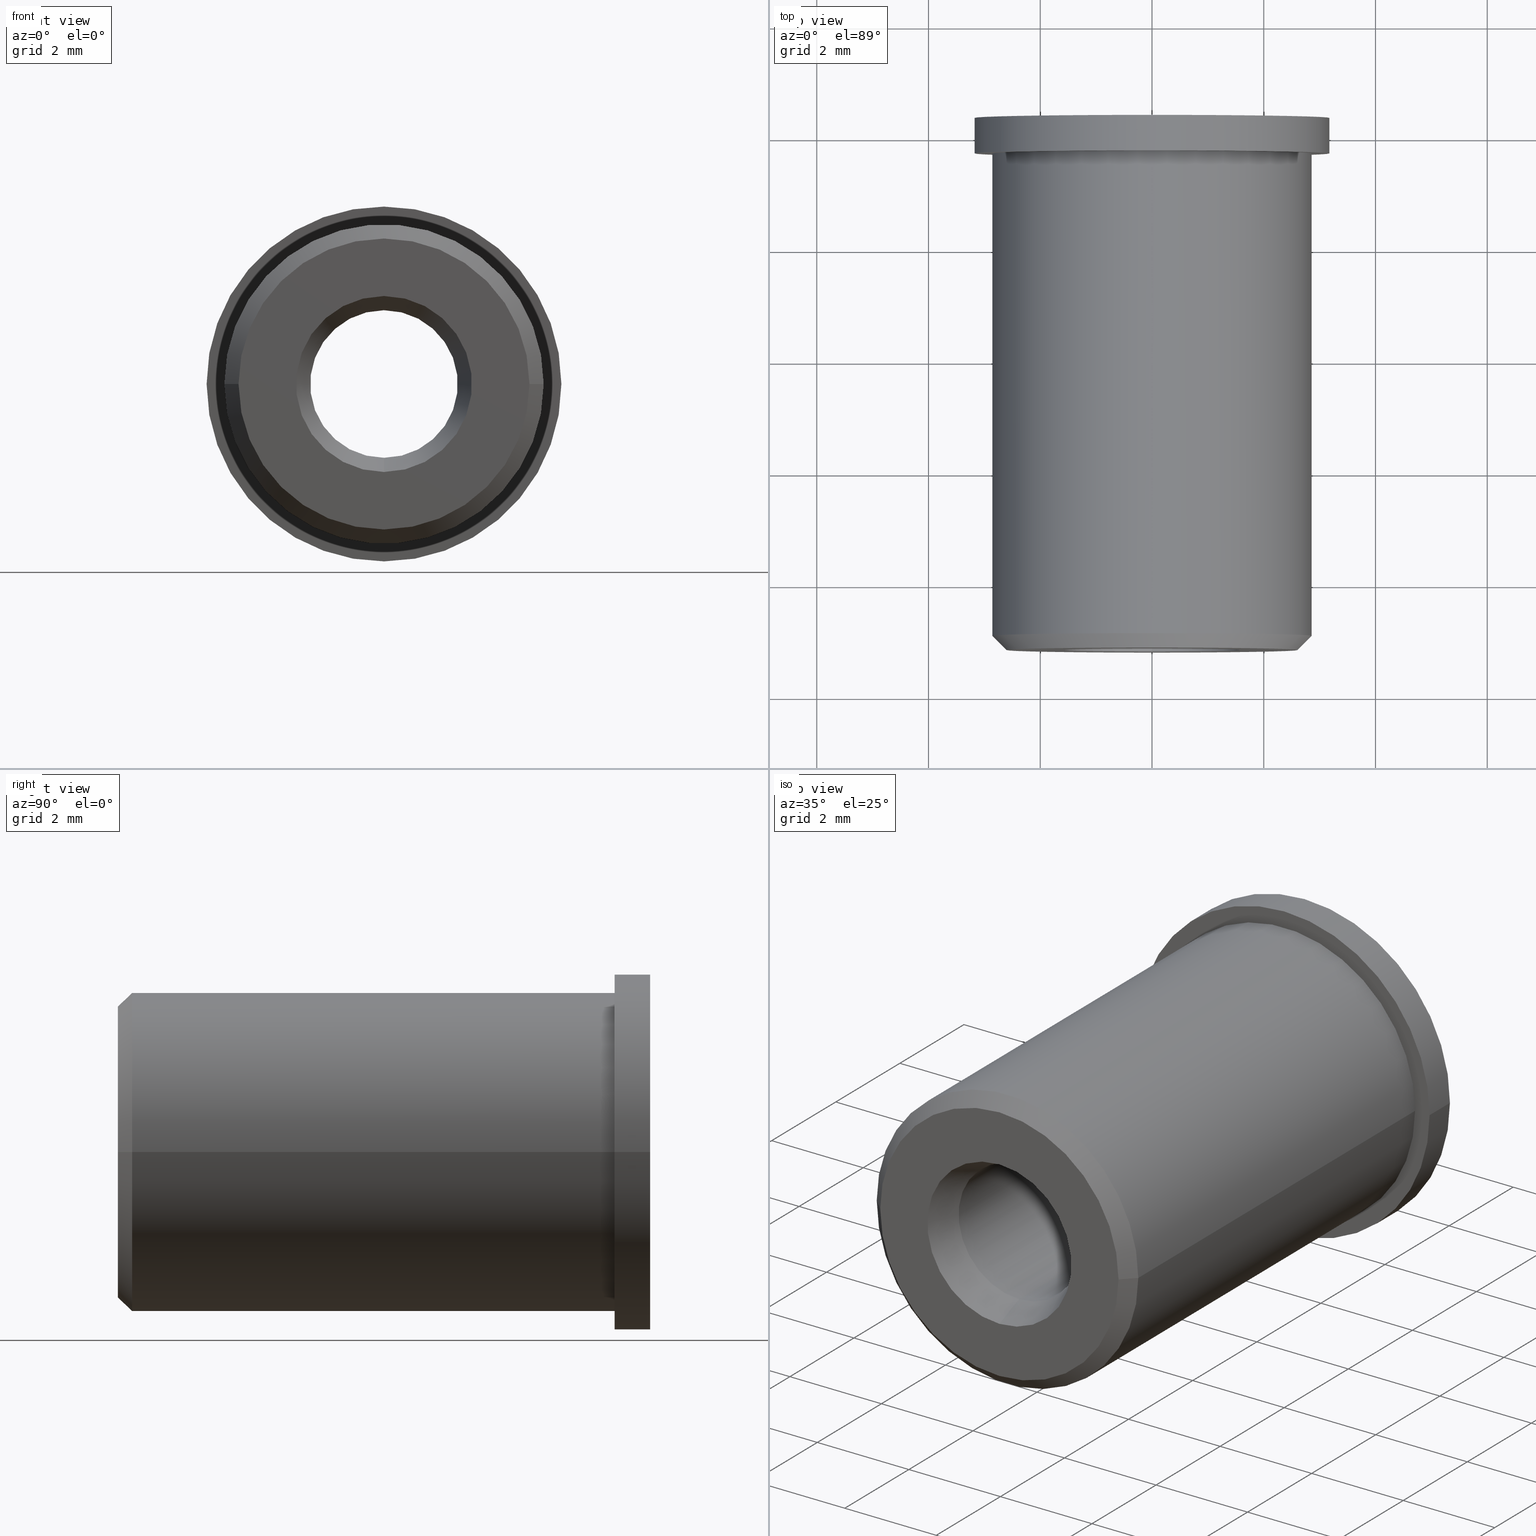
[diagram: canonical four-view strip — front | top / right | iso, engineering-drawing reading convention]
A machine part, canonical four-view strip (front | top / right | iso — engineering-drawing reading convention). The complete STEP part file that produces these views, byte-faithful:
ISO-10303-21;
HEADER;
FILE_DESCRIPTION (( 'STEP AP214' ),
    '1' );
FILE_NAME ('7627-E0W.step',
    '2007-11-09T07:52:29',
    ( ' ' ),
    ( ' ' ),
    'SwSTEP 2.0',
    'SolidWorks 2007',
    '' );
FILE_SCHEMA (( 'AUTOMOTIVE_DESIGN' ));
ENDSEC;

DATA;
#1 = UNCERTAINTY_MEASURE_WITH_UNIT (LENGTH_MEASURE( 1.000000000000000100E-005 ), #221, 'distance_accuracy_value', 'NONE');
#2 =( NAMED_UNIT ( * ) SI_UNIT ( $, .STERADIAN. ) SOLID_ANGLE_UNIT ( ) );
#3 =( GEOMETRIC_REPRESENTATION_CONTEXT ( 3 ) GLOBAL_UNCERTAINTY_ASSIGNED_CONTEXT ( ( #1 ) ) GLOBAL_UNIT_ASSIGNED_CONTEXT ( ( #221, #220, #2 ) ) REPRESENTATION_CONTEXT ( 'NONE', 'WORKASPACE' ) );
#4 = PRODUCT_RELATED_PRODUCT_CATEGORY ( 'part', '', ( #465 ) ) ;
#5 = PRODUCT_DEFINITION ( 'UNKNOWN', '', #6, #8 ) ;
#6 = PRODUCT_DEFINITION_FORMATION_WITH_SPECIFIED_SOURCE ( 'ANY', '', #465, .NOT_KNOWN. ) ;
#7 = FACE_OUTER_BOUND ( 'NONE', #45, .T. ) ;
#8 = PRODUCT_DEFINITION_CONTEXT ( 'detailed design', #464, 'design' ) ;
#9 = EDGE_LOOP ( 'NONE', ( #15, #16, #12, #10 ) ) ;
#10 = ORIENTED_EDGE ( 'NONE', *, *, #57, .F. ) ;
#11 = EDGE_CURVE ( 'NONE', #14, #58, #151, .T. ) ;
#12 = ORIENTED_EDGE ( 'NONE', *, *, #11, .T. ) ;
#13 = EDGE_CURVE ( 'NONE', #49, #14, #146, .T. ) ;
#14 = VERTEX_POINT ( 'NONE', #142 ) ;
#15 = ORIENTED_EDGE ( 'NONE', *, *, #48, .F. ) ;
#16 = ORIENTED_EDGE ( 'NONE', *, *, #13, .T. ) ;
#17 = ADVANCED_FACE ( 'NONE', ( #141 ), #171, .F. ) ;
#18 = EDGE_CURVE ( 'NONE', #49, #56, #167, .T. ) ;
#19 = SHAPE_DEFINITION_REPRESENTATION ( #20, #444 ) ;
#20 = PRODUCT_DEFINITION_SHAPE ( 'NONE', 'NONE',  #5 ) ;
#21 = ORIENTED_EDGE ( 'NONE', *, *, #57, .T. ) ;
#22 = EDGE_CURVE ( 'NONE', #93, #99, #216, .T. ) ;
#23 = ADVANCED_FACE ( 'NONE', ( #212 ), #210, .T. ) ;
#24 = EDGE_LOOP ( 'NONE', ( #25, #80, #82, #83 ) ) ;
#25 = ORIENTED_EDGE ( 'NONE', *, *, #26, .T. ) ;
#26 = EDGE_CURVE ( 'NONE', #27, #79, #205, .T. ) ;
#27 = VERTEX_POINT ( 'NONE', #201 ) ;
#28 = ADVANCED_FACE ( 'NONE', ( #200 ), #198, .F. ) ;
#29 = EDGE_LOOP ( 'NONE', ( #30, #31, #34, #37 ) ) ;
#30 = ORIENTED_EDGE ( 'NONE', *, *, #11, .F. ) ;
#31 = ORIENTED_EDGE ( 'NONE', *, *, #32, .T. ) ;
#32 = EDGE_CURVE ( 'NONE', #14, #33, #194, .T. ) ;
#33 = VERTEX_POINT ( 'NONE', #190 ) ;
#34 = ORIENTED_EDGE ( 'NONE', *, *, #35, .T. ) ;
#35 = EDGE_CURVE ( 'NONE', #33, #36, #189, .T. ) ;
#36 = VERTEX_POINT ( 'NONE', #251 ) ;
#37 = ORIENTED_EDGE ( 'NONE', *, *, #38, .F. ) ;
#38 = EDGE_CURVE ( 'NONE', #58, #36, #250, .T. ) ;
#39 = ADVANCED_FACE ( 'NONE', ( #246 ), #244, .T. ) ;
#40 = EDGE_LOOP ( 'NONE', ( #41, #94, #97, #100 ) ) ;
#41 = ORIENTED_EDGE ( 'NONE', *, *, #42, .F. ) ;
#42 = EDGE_CURVE ( 'NONE', #43, #93, #239, .T. ) ;
#43 = VERTEX_POINT ( 'NONE', #235 ) ;
#44 = MANIFOLD_SOLID_BREP ( 'NONE', #159 ) ;
#45 = EDGE_LOOP ( 'NONE', ( #47, #51, #54, #59 ) ) ;
#46 = ADVANCED_FACE ( 'NONE', ( #7 ), #283, .F. ) ;
#47 = ORIENTED_EDGE ( 'NONE', *, *, #48, .T. ) ;
#48 = EDGE_CURVE ( 'NONE', #49, #50, #278, .T. ) ;
#49 = VERTEX_POINT ( 'NONE', #274 ) ;
#50 = VERTEX_POINT ( 'NONE', #273 ) ;
#51 = ORIENTED_EDGE ( 'NONE', *, *, #52, .T. ) ;
#52 = EDGE_CURVE ( 'NONE', #50, #53, #272, .T. ) ;
#53 = VERTEX_POINT ( 'NONE', #268 ) ;
#54 = ORIENTED_EDGE ( 'NONE', *, *, #55, .F. ) ;
#55 = EDGE_CURVE ( 'NONE', #56, #53, #267, .T. ) ;
#56 = VERTEX_POINT ( 'NONE', #262 ) ;
#57 = EDGE_CURVE ( 'NONE', #50, #58, #261, .T. ) ;
#58 = VERTEX_POINT ( 'NONE', #257 ) ;
#59 = ORIENTED_EDGE ( 'NONE', *, *, #18, .F. ) ;
#60 = ORIENTED_EDGE ( 'NONE', *, *, #61, .F. ) ;
#61 = EDGE_CURVE ( 'NONE', #79, #27, #256, .T. ) ;
#62 = EDGE_LOOP ( 'NONE', ( #119, #120 ) ) ;
#63 = VERTEX_POINT ( 'NONE', #313 ) ;
#64 = ORIENTED_EDGE ( 'NONE', *, *, #65, .F. ) ;
#65 = EDGE_CURVE ( 'NONE', #66, #63, #312, .T. ) ;
#66 = VERTEX_POINT ( 'NONE', #307 ) ;
#67 = ORIENTED_EDGE ( 'NONE', *, *, #68, .F. ) ;
#68 = EDGE_CURVE ( 'NONE', #89, #66, #306, .T. ) ;
#69 = ADVANCED_FACE ( 'NONE', ( #302, #301 ), #300, .T. ) ;
#70 = EDGE_LOOP ( 'NONE', ( #71, #73 ) ) ;
#71 = ORIENTED_EDGE ( 'NONE', *, *, #72, .F. ) ;
#72 = EDGE_CURVE ( 'NONE', #36, #33, #295, .T. ) ;
#73 = ORIENTED_EDGE ( 'NONE', *, *, #35, .F. ) ;
#74 = EDGE_LOOP ( 'NONE', ( #75, #76 ) ) ;
#75 = ORIENTED_EDGE ( 'NONE', *, *, #88, .F. ) ;
#76 = ORIENTED_EDGE ( 'NONE', *, *, #77, .F. ) ;
#77 = EDGE_CURVE ( 'NONE', #90, #89, #290, .T. ) ;
#78 = EDGE_LOOP ( 'NONE', ( #131, #132, #133, #134 ) ) ;
#79 = VERTEX_POINT ( 'NONE', #285 ) ;
#80 = ORIENTED_EDGE ( 'NONE', *, *, #81, .T. ) ;
#81 = EDGE_CURVE ( 'NONE', #79, #99, #349, .T. ) ;
#82 = ORIENTED_EDGE ( 'NONE', *, *, #98, .F. ) ;
#83 = ORIENTED_EDGE ( 'NONE', *, *, #84, .F. ) ;
#84 = EDGE_CURVE ( 'NONE', #27, #96, #345, .T. ) ;
#85 = ADVANCED_FACE ( 'NONE', ( #341 ), #339, .T. ) ;
#86 = EDGE_LOOP ( 'NONE', ( #87, #91, #64, #67 ) ) ;
#87 = ORIENTED_EDGE ( 'NONE', *, *, #88, .T. ) ;
#88 = EDGE_CURVE ( 'NONE', #89, #90, #334, .T. ) ;
#89 = VERTEX_POINT ( 'NONE', #330 ) ;
#90 = VERTEX_POINT ( 'NONE', #329 ) ;
#91 = ORIENTED_EDGE ( 'NONE', *, *, #92, .T. ) ;
#92 = EDGE_CURVE ( 'NONE', #90, #63, #328, .T. ) ;
#93 = VERTEX_POINT ( 'NONE', #324 ) ;
#94 = ORIENTED_EDGE ( 'NONE', *, *, #95, .T. ) ;
#95 = EDGE_CURVE ( 'NONE', #43, #96, #323, .T. ) ;
#96 = VERTEX_POINT ( 'NONE', #319 ) ;
#97 = ORIENTED_EDGE ( 'NONE', *, *, #98, .T. ) ;
#98 = EDGE_CURVE ( 'NONE', #96, #99, #318, .T. ) ;
#99 = VERTEX_POINT ( 'NONE', #373 ) ;
#100 = ORIENTED_EDGE ( 'NONE', *, *, #22, .F. ) ;
#101 = ADVANCED_FACE ( 'NONE', ( #372 ), #351, .F. ) ;
#102 = EDGE_LOOP ( 'NONE', ( #103, #104, #21, #152 ) ) ;
#103 = ORIENTED_EDGE ( 'NONE', *, *, #13, .F. ) ;
#104 = ORIENTED_EDGE ( 'NONE', *, *, #105, .F. ) ;
#105 = EDGE_CURVE ( 'NONE', #50, #49, #407, .T. ) ;
#106 = ORIENTED_EDGE ( 'NONE', *, *, #95, .F. ) ;
#107 = ORIENTED_EDGE ( 'NONE', *, *, #108, .F. ) ;
#108 = EDGE_CURVE ( 'NONE', #93, #43, #403, .T. ) ;
#109 = ORIENTED_EDGE ( 'NONE', *, *, #22, .T. ) ;
#110 = ORIENTED_EDGE ( 'NONE', *, *, #127, .T. ) ;
#111 = ADVANCED_FACE ( 'NONE', ( #398, #397 ), #396, .F. ) ;
#112 = EDGE_LOOP ( 'NONE', ( #113, #114 ) ) ;
#113 = ORIENTED_EDGE ( 'NONE', *, *, #55, .T. ) ;
#114 = ORIENTED_EDGE ( 'NONE', *, *, #115, .T. ) ;
#115 = EDGE_CURVE ( 'NONE', #53, #56, #391, .T. ) ;
#116 = EDGE_LOOP ( 'NONE', ( #117, #118 ) ) ;
#117 = ORIENTED_EDGE ( 'NONE', *, *, #108, .T. ) ;
#118 = ORIENTED_EDGE ( 'NONE', *, *, #42, .T. ) ;
#119 = ORIENTED_EDGE ( 'NONE', *, *, #65, .T. ) ;
#120 = ORIENTED_EDGE ( 'NONE', *, *, #135, .T. ) ;
#121 = ADVANCED_FACE ( 'NONE', ( #386 ), #385, .T. ) ;
#122 = EDGE_LOOP ( 'NONE', ( #123, #124, #125, #126 ) ) ;
#123 = ORIENTED_EDGE ( 'NONE', *, *, #81, .F. ) ;
#124 = ORIENTED_EDGE ( 'NONE', *, *, #61, .T. ) ;
#125 = ORIENTED_EDGE ( 'NONE', *, *, #84, .T. ) ;
#126 = ORIENTED_EDGE ( 'NONE', *, *, #127, .F. ) ;
#127 = EDGE_CURVE ( 'NONE', #99, #96, #379, .T. ) ;
#128 = ADVANCED_FACE ( 'NONE', ( #441 ), #440, .T. ) ;
#129 = EDGE_LOOP ( 'NONE', ( #106, #107, #109, #110 ) ) ;
#130 = ADVANCED_FACE ( 'NONE', ( #439 ), #434, .T. ) ;
#131 = ORIENTED_EDGE ( 'NONE', *, *, #92, .F. ) ;
#132 = ORIENTED_EDGE ( 'NONE', *, *, #77, .T. ) ;
#133 = ORIENTED_EDGE ( 'NONE', *, *, #68, .T. ) ;
#134 = ORIENTED_EDGE ( 'NONE', *, *, #135, .F. ) ;
#135 = EDGE_CURVE ( 'NONE', #63, #66, #428, .T. ) ;
#136 = ADVANCED_FACE ( 'NONE', ( #424, #423 ), #422, .F. ) ;
#137 = EDGE_LOOP ( 'NONE', ( #138, #60 ) ) ;
#138 = ORIENTED_EDGE ( 'NONE', *, *, #26, .F. ) ;
#139 = FILL_AREA_STYLE_COLOUR ( '', #140 ) ;
#140 = COLOUR_RGB ( '',1.000000000000000000, 0.7254901960784313500, 0.0000000000000000000 ) ;
#141 = FACE_OUTER_BOUND ( 'NONE', #9, .T. ) ;
#142 = CARTESIAN_POINT ( 'NONE',  ( -8.637962917637001400E-016, 0.2258578643762695300, -0.05199999999999999100 ) ) ;
#143 = DIRECTION ( 'NONE',  ( 0.0000000000000000000, 1.000000000000000000, 0.0000000000000000000 ) ) ;
#144 = VECTOR ( 'NONE', #143, 39.37007874015748100 ) ;
#145 = CARTESIAN_POINT ( 'NONE',  ( -8.644085949406113300E-016, 0.2500000000000006100, -0.05199999999999995600 ) ) ;
#146 = LINE ( 'NONE', #145, #144 ) ;
#147 = DIRECTION ( 'NONE',  ( 0.0000000000000000000, 0.0000000000000000000, 1.000000000000000000 ) ) ;
#148 = DIRECTION ( 'NONE',  ( 0.0000000000000000000, 1.000000000000000000, 0.0000000000000000000 ) ) ;
#149 = CARTESIAN_POINT ( 'NONE',  ( -8.707765479804877300E-016, 0.2258578643762695300, 0.0000000000000000000 ) ) ;
#150 = AXIS2_PLACEMENT_3D ( 'NONE', #149, #148, #147 ) ;
#151 = CIRCLE ( 'NONE', #150, 0.05199999999999999100 ) ;
#152 = ORIENTED_EDGE ( 'NONE', *, *, #164, .T. ) ;
#153 = ADVANCED_FACE ( 'NONE', ( #417 ), #416, .F. ) ;
#154 = EDGE_LOOP ( 'NONE', ( #155, #156, #157, #158 ) ) ;
#155 = ORIENTED_EDGE ( 'NONE', *, *, #52, .F. ) ;
#156 = ORIENTED_EDGE ( 'NONE', *, *, #105, .T. ) ;
#157 = ORIENTED_EDGE ( 'NONE', *, *, #18, .T. ) ;
#158 = ORIENTED_EDGE ( 'NONE', *, *, #115, .F. ) ;
#159 = CLOSED_SHELL ( 'NONE', ( #46, #17, #28, #39, #23, #85, #69, #130, #136, #121, #128, #111, #160, #101, #153 ) ) ;
#160 = ADVANCED_FACE ( 'NONE', ( #415 ), #410, .F. ) ;
#161 = EDGE_LOOP ( 'NONE', ( #162, #163, #165, #166 ) ) ;
#162 = ORIENTED_EDGE ( 'NONE', *, *, #32, .F. ) ;
#163 = ORIENTED_EDGE ( 'NONE', *, *, #164, .F. ) ;
#164 = EDGE_CURVE ( 'NONE', #58, #14, #458, .T. ) ;
#165 = ORIENTED_EDGE ( 'NONE', *, *, #38, .T. ) ;
#166 = ORIENTED_EDGE ( 'NONE', *, *, #72, .T. ) ;
#167 = LINE ( 'NONE', #219, #218 ) ;
#168 = DIRECTION ( 'NONE',  ( 0.0000000000000000000, 0.0000000000000000000, 1.000000000000000000 ) ) ;
#169 = DIRECTION ( 'NONE',  ( 0.0000000000000000000, 1.000000000000000000, 0.0000000000000000000 ) ) ;
#170 = AXIS2_PLACEMENT_3D ( 'NONE', #172, #169, #168 ) ;
#171 = CYLINDRICAL_SURFACE ( 'NONE', #170, 0.05199999999999995600 ) ;
#172 = CARTESIAN_POINT ( 'NONE',  ( -8.707765479804877300E-016, 0.2500000000000006100, 0.0000000000000000000 ) ) ;
#173 =( GEOMETRIC_REPRESENTATION_CONTEXT ( 3 ) GLOBAL_UNCERTAINTY_ASSIGNED_CONTEXT ( ( #174 ) ) GLOBAL_UNIT_ASSIGNED_CONTEXT ( ( #177, #176, #175 ) ) REPRESENTATION_CONTEXT ( 'NONE', 'WORKASPACE' ) );
#174 = UNCERTAINTY_MEASURE_WITH_UNIT (LENGTH_MEASURE( 1.000000000000000100E-005 ), #177, 'distance_accuracy_value', 'NONE');
#175 =( NAMED_UNIT ( * ) SI_UNIT ( $, .STERADIAN. ) SOLID_ANGLE_UNIT ( ) );
#176 =( NAMED_UNIT ( * ) PLANE_ANGLE_UNIT ( ) SI_UNIT ( $, .RADIAN. ) );
#177 =( CONVERSION_BASED_UNIT ( 'INCH', #178 ) LENGTH_UNIT ( ) NAMED_UNIT ( #179 ) );
#178 = LENGTH_MEASURE_WITH_UNIT ( LENGTH_MEASURE( 0.02539999999999999900 ), #180 );
#179 = DIMENSIONAL_EXPONENTS ( 1.000000000000000000, 0.0000000000000000000, 0.0000000000000000000, 0.0000000000000000000, 0.0000000000000000000, 0.0000000000000000000, 0.0000000000000000000 ) ;
#180 =( LENGTH_UNIT ( ) NAMED_UNIT ( * ) SI_UNIT ( $, .METRE. ) );
#181 = MECHANICAL_DESIGN_GEOMETRIC_PRESENTATION_REPRESENTATION (  '', ( #183 ), #173 ) ;
#182 = PRESENTATION_LAYER_ASSIGNMENT (  '', '', ( #183 ) ) ;
#183 = STYLED_ITEM ( 'NONE', ( #184 ), #17 ) ;
#184 = PRESENTATION_STYLE_ASSIGNMENT (( #185 ) ) ;
#185 = SURFACE_STYLE_USAGE ( .BOTH. , #186 ) ;
#186 = SURFACE_SIDE_STYLE ('',( #187 ) ) ;
#187 = SURFACE_STYLE_FILL_AREA ( #188 ) ;
#188 = FILL_AREA_STYLE ('',( #139 ) ) ;
#189 = CIRCLE ( 'NONE', #255, 0.06199999999999997900 ) ;
#190 = CARTESIAN_POINT ( 'NONE',  ( -8.631839885867890400E-016, 0.2500000000000006700, -0.06199999999999997900 ) ) ;
#191 = DIRECTION ( 'NONE',  ( 4.686365627768408700E-017, 0.9238795325112879600, -0.3826834323650865100 ) ) ;
#192 = VECTOR ( 'NONE', #191, 39.37007874015748900 ) ;
#193 = CARTESIAN_POINT ( 'NONE',  ( -8.631839885867890400E-016, 0.2500000000000006700, -0.06199999999999997900 ) ) ;
#194 = LINE ( 'NONE', #193, #192 ) ;
#195 = DIRECTION ( 'NONE',  ( 0.0000000000000000000, 0.0000000000000000000, 1.000000000000000000 ) ) ;
#196 = DIRECTION ( 'NONE',  ( 0.0000000000000000000, 1.000000000000000000, 0.0000000000000000000 ) ) ;
#197 = AXIS2_PLACEMENT_3D ( 'NONE', #199, #196, #195 ) ;
#198 = CONICAL_SURFACE ( 'NONE', #197, 0.06199999999999997900, 0.3926990816987207000 ) ;
#199 = CARTESIAN_POINT ( 'NONE',  ( -8.707765479804877300E-016, 0.2500000000000006700, 0.0000000000000000000 ) ) ;
#200 = FACE_OUTER_BOUND ( 'NONE', #29, .T. ) ;
#201 = CARTESIAN_POINT ( 'NONE',  ( 0.1125000000000023200, 0.2250000000000025900, 0.0000000000000000000 ) ) ;
#202 = DIRECTION ( 'NONE',  ( 1.000000000000000000, 3.338925325589625100E-015, 0.0000000000000000000 ) ) ;
#203 = DIRECTION ( 'NONE',  ( 3.483106191921942700E-015, -1.000000000000000000, 0.0000000000000000000 ) ) ;
#204 = AXIS2_PLACEMENT_3D ( 'NONE', #211, #203, #202 ) ;
#205 = CIRCLE ( 'NONE', #204, 0.1125000000000010000 ) ;
#206 = DIRECTION ( 'NONE',  ( 1.000000000000000000, 3.483106191921943400E-015, 0.0000000000000000000 ) ) ;
#207 = DIRECTION ( 'NONE',  ( 3.483106191921942700E-015, -1.000000000000000000, 0.0000000000000000000 ) ) ;
#208 = CARTESIAN_POINT ( 'NONE',  ( 2.100108145129402400E-015, 1.092680835779487700E-015, 0.0000000000000000000 ) ) ;
#209 = AXIS2_PLACEMENT_3D ( 'NONE', #208, #207, #206 ) ;
#210 = CYLINDRICAL_SURFACE ( 'NONE', #209, 0.1125000000000019500 ) ;
#211 = CARTESIAN_POINT ( 'NONE',  ( 1.316409251946961300E-015, 0.2250000000000022000, 0.0000000000000000000 ) ) ;
#212 = FACE_OUTER_BOUND ( 'NONE', #24, .T. ) ;
#213 = DIRECTION ( 'NONE',  ( -0.7071067811865077200, 0.7071067811865873200, 0.0000000000000000000 ) ) ;
#214 = VECTOR ( 'NONE', #213, 39.37007874015748100 ) ;
#215 = CARTESIAN_POINT ( 'NONE',  ( -0.1125000000000003800, -0.1149999999999989100, 0.0000000000000000000 ) ) ;
#216 = LINE ( 'NONE', #215, #214 ) ;
#217 = DIRECTION ( 'NONE',  ( 0.0000000000000000000, -0.9238795325112865200, -0.3826834323650904500 ) ) ;
#218 = VECTOR ( 'NONE', #217, 39.37007874015748100 ) ;
#219 = CARTESIAN_POINT ( 'NONE',  ( -8.707765479804877300E-016, -0.1008578643762686300, -0.05199999999999992800 ) ) ;
#220 =( NAMED_UNIT ( * ) PLANE_ANGLE_UNIT ( ) SI_UNIT ( $, .RADIAN. ) );
#221 =( CONVERSION_BASED_UNIT ( 'INCH', #222 ) LENGTH_UNIT ( ) NAMED_UNIT ( #223 ) );
#222 = LENGTH_MEASURE_WITH_UNIT ( LENGTH_MEASURE( 0.02539999999999999900 ), #224 );
#223 = DIMENSIONAL_EXPONENTS ( 1.000000000000000000, 0.0000000000000000000, 0.0000000000000000000, 0.0000000000000000000, 0.0000000000000000000, 0.0000000000000000000, 0.0000000000000000000 ) ;
#224 =( LENGTH_UNIT ( ) NAMED_UNIT ( * ) SI_UNIT ( $, .METRE. ) );
#225 = MECHANICAL_DESIGN_GEOMETRIC_PRESENTATION_REPRESENTATION (  '', ( #227 ), #3 ) ;
#226 = PRESENTATION_LAYER_ASSIGNMENT (  '', '', ( #227 ) ) ;
#227 = STYLED_ITEM ( 'NONE', ( #228 ), #44 ) ;
#228 = PRESENTATION_STYLE_ASSIGNMENT (( #229 ) ) ;
#229 = SURFACE_STYLE_USAGE ( .BOTH. , #230 ) ;
#230 = SURFACE_SIDE_STYLE ('',( #231 ) ) ;
#231 = SURFACE_STYLE_FILL_AREA ( #232 ) ;
#232 = FILL_AREA_STYLE ('',( #233 ) ) ;
#233 = FILL_AREA_STYLE_COLOUR ( '', #234 ) ;
#234 = COLOUR_RGB ( '',1.000000000000000000, 0.7254901960784313500, 0.0000000000000000000 ) ;
#235 = CARTESIAN_POINT ( 'NONE',  ( 0.1025000000000064200, -0.1249999999999983600, 1.316451830359096900E-017 ) ) ;
#236 = DIRECTION ( 'NONE',  ( 1.000000000000000000, 3.498098040667521200E-015, 0.0000000000000000000 ) ) ;
#237 = DIRECTION ( 'NONE',  ( 3.483106191921942700E-015, -1.000000000000000000, 0.0000000000000000000 ) ) ;
#238 = AXIS2_PLACEMENT_3D ( 'NONE', #245, #237, #236 ) ;
#239 = CIRCLE ( 'NONE', #238, 0.1025000000000038900 ) ;
#240 = DIRECTION ( 'NONE',  ( -1.000000000000000000, -3.490694658570914100E-015, 0.0000000000000000000 ) ) ;
#241 = DIRECTION ( 'NONE',  ( -3.483106191921942700E-015, 1.000000000000000000, 0.0000000000000000000 ) ) ;
#242 = CARTESIAN_POINT ( 'NONE',  ( 2.500665357200424700E-015, -0.1149999999999985200, 0.0000000000000000000 ) ) ;
#243 = AXIS2_PLACEMENT_3D ( 'NONE', #242, #241, #240 ) ;
#244 = CONICAL_SURFACE ( 'NONE', #243, 0.1125000000000028600, 0.7853981633973885500 ) ;
#245 = CARTESIAN_POINT ( 'NONE',  ( 2.535496419119644400E-015, -0.1249999999999987200, 0.0000000000000000000 ) ) ;
#246 = FACE_OUTER_BOUND ( 'NONE', #40, .T. ) ;
#247 = DIRECTION ( 'NONE',  ( 0.0000000000000000000, 0.9238795325112879600, 0.3826834323650865100 ) ) ;
#248 = VECTOR ( 'NONE', #247, 39.37007874015748900 ) ;
#249 = CARTESIAN_POINT ( 'NONE',  ( -8.707765479804877300E-016, 0.2500000000000006700, 0.06199999999999997900 ) ) ;
#250 = LINE ( 'NONE', #249, #248 ) ;
#251 = CARTESIAN_POINT ( 'NONE',  ( -8.707765479804877300E-016, 0.2500000000000006700, 0.06199999999999997900 ) ) ;
#252 = DIRECTION ( 'NONE',  ( 0.0000000000000000000, 0.0000000000000000000, 1.000000000000000000 ) ) ;
#253 = DIRECTION ( 'NONE',  ( 0.0000000000000000000, 1.000000000000000000, 0.0000000000000000000 ) ) ;
#254 = CARTESIAN_POINT ( 'NONE',  ( -8.707765479804877300E-016, 0.2500000000000006700, 0.0000000000000000000 ) ) ;
#255 = AXIS2_PLACEMENT_3D ( 'NONE', #254, #253, #252 ) ;
#256 = CIRCLE ( 'NONE', #317, 0.1125000000000010000 ) ;
#257 = CARTESIAN_POINT ( 'NONE',  ( -8.707765479804877300E-016, 0.2258578643762695300, 0.05199999999999999100 ) ) ;
#258 = DIRECTION ( 'NONE',  ( 0.0000000000000000000, 1.000000000000000000, 0.0000000000000000000 ) ) ;
#259 = VECTOR ( 'NONE', #258, 39.37007874015748100 ) ;
#260 = CARTESIAN_POINT ( 'NONE',  ( -8.707765479804877300E-016, 0.2500000000000006100, 0.05199999999999995600 ) ) ;
#261 = LINE ( 'NONE', #260, #259 ) ;
#262 = CARTESIAN_POINT ( 'NONE',  ( -8.707765479804877300E-016, -0.1249999999999994900, -0.06199999999999990200 ) ) ;
#263 = DIRECTION ( 'NONE',  ( 0.0000000000000000000, 0.0000000000000000000, 1.000000000000000000 ) ) ;
#264 = DIRECTION ( 'NONE',  ( 0.0000000000000000000, 1.000000000000000000, 0.0000000000000000000 ) ) ;
#265 = CARTESIAN_POINT ( 'NONE',  ( -8.707765479804877300E-016, -0.1249999999999994900, 0.0000000000000000000 ) ) ;
#266 = AXIS2_PLACEMENT_3D ( 'NONE', #265, #264, #263 ) ;
#267 = CIRCLE ( 'NONE', #266, 0.06199999999999990200 ) ;
#268 = CARTESIAN_POINT ( 'NONE',  ( -8.631839885867890400E-016, -0.1249999999999994900, 0.06199999999999990200 ) ) ;
#269 = DIRECTION ( 'NONE',  ( 4.686365627768457400E-017, -0.9238795325112865200, 0.3826834323650904500 ) ) ;
#270 = VECTOR ( 'NONE', #269, 39.37007874015748100 ) ;
#271 = CARTESIAN_POINT ( 'NONE',  ( -8.644085949406113300E-016, -0.1008578643762686300, 0.05199999999999992800 ) ) ;
#272 = LINE ( 'NONE', #271, #270 ) ;
#273 = CARTESIAN_POINT ( 'NONE',  ( -8.707765479804877300E-016, -0.1008578643762686300, 0.05199999999999992800 ) ) ;
#274 = CARTESIAN_POINT ( 'NONE',  ( -8.644085949406113300E-016, -0.1008578643762686300, -0.05199999999999992800 ) ) ;
#275 = DIRECTION ( 'NONE',  ( 0.0000000000000000000, 0.0000000000000000000, 1.000000000000000000 ) ) ;
#276 = DIRECTION ( 'NONE',  ( 0.0000000000000000000, 1.000000000000000000, 0.0000000000000000000 ) ) ;
#277 = AXIS2_PLACEMENT_3D ( 'NONE', #284, #276, #275 ) ;
#278 = CIRCLE ( 'NONE', #277, 0.05199999999999992800 ) ;
#279 = DIRECTION ( 'NONE',  ( 0.0000000000000000000, 0.0000000000000000000, -1.000000000000000000 ) ) ;
#280 = DIRECTION ( 'NONE',  ( 0.0000000000000000000, -1.000000000000000000, 0.0000000000000000000 ) ) ;
#281 = CARTESIAN_POINT ( 'NONE',  ( -8.707765479804877300E-016, -0.1008578643762686300, 0.0000000000000000000 ) ) ;
#282 = AXIS2_PLACEMENT_3D ( 'NONE', #281, #280, #279 ) ;
#283 = CONICAL_SURFACE ( 'NONE', #282, 0.05199999999999992800, 0.3926990816987248600 ) ;
#284 = CARTESIAN_POINT ( 'NONE',  ( -8.707765479804877300E-016, -0.1008578643762686300, 0.0000000000000000000 ) ) ;
#285 = CARTESIAN_POINT ( 'NONE',  ( -0.1124999999999996800, 0.2250000000000018400, 1.377682148050199600E-017 ) ) ;
#286 = DIRECTION ( 'NONE',  ( 1.000000000000000000, 3.551402391763541600E-015, 0.0000000000000000000 ) ) ;
#287 = DIRECTION ( 'NONE',  ( 3.483106191921942700E-015, -1.000000000000000000, 0.0000000000000000000 ) ) ;
#288 = CARTESIAN_POINT ( 'NONE',  ( 1.229331597148917000E-015, 0.2500000000000010500, 0.0000000000000000000 ) ) ;
#289 = AXIS2_PLACEMENT_3D ( 'NONE', #288, #287, #286 ) ;
#290 = CIRCLE ( 'NONE', #289, 0.1250000000000000300 ) ;
#291 = DIRECTION ( 'NONE',  ( 0.0000000000000000000, 0.0000000000000000000, 1.000000000000000000 ) ) ;
#292 = DIRECTION ( 'NONE',  ( 0.0000000000000000000, 1.000000000000000000, 0.0000000000000000000 ) ) ;
#293 = CARTESIAN_POINT ( 'NONE',  ( -8.707765479804877300E-016, 0.2500000000000006700, 0.0000000000000000000 ) ) ;
#294 = AXIS2_PLACEMENT_3D ( 'NONE', #293, #292, #291 ) ;
#295 = CIRCLE ( 'NONE', #294, 0.06199999999999997900 ) ;
#296 = DIRECTION ( 'NONE',  ( -1.000000000000000000, -3.483106191921942300E-015, 0.0000000000000000000 ) ) ;
#297 = DIRECTION ( 'NONE',  ( -3.483106191921942300E-015, 1.000000000000000000, 0.0000000000000000000 ) ) ;
#298 = CARTESIAN_POINT ( 'NONE',  ( 3.179099014113196600E-015, 0.2500000000000006100, 0.0000000000000000000 ) ) ;
#299 = AXIS2_PLACEMENT_3D ( 'NONE', #298, #297, #296 ) ;
#300 = PLANE ( 'NONE',  #299 ) ;
#301 = FACE_OUTER_BOUND ( 'NONE', #74, .T. ) ;
#302 = FACE_BOUND ( 'NONE', #70, .T. ) ;
#303 = DIRECTION ( 'NONE',  ( 3.483106191921942300E-015, -1.000000000000000000, 0.0000000000000000000 ) ) ;
#304 = VECTOR ( 'NONE', #303, 39.37007874015748100 ) ;
#305 = CARTESIAN_POINT ( 'NONE',  ( 0.1250000000000021600, 1.528069109769730900E-015, 0.0000000000000000000 ) ) ;
#306 = LINE ( 'NONE', #305, #304 ) ;
#307 = CARTESIAN_POINT ( 'NONE',  ( 0.1250000000000014400, 0.2250000000000027300, 0.0000000000000000000 ) ) ;
#308 = DIRECTION ( 'NONE',  ( 1.000000000000000000, 3.551402391763539200E-015, 0.0000000000000000000 ) ) ;
#309 = DIRECTION ( 'NONE',  ( 3.483106191921942700E-015, -1.000000000000000000, 0.0000000000000000000 ) ) ;
#310 = CARTESIAN_POINT ( 'NONE',  ( 1.316409251946961100E-015, 0.2250000000000022800, 0.0000000000000000000 ) ) ;
#311 = AXIS2_PLACEMENT_3D ( 'NONE', #310, #309, #308 ) ;
#312 = CIRCLE ( 'NONE', #311, 0.1250000000000001100 ) ;
#313 = CARTESIAN_POINT ( 'NONE',  ( -0.1249999999999988100, 0.2250000000000018400, 1.530757942277972800E-017 ) ) ;
#314 = DIRECTION ( 'NONE',  ( 1.000000000000000000, 3.338925325589625100E-015, 0.0000000000000000000 ) ) ;
#315 = DIRECTION ( 'NONE',  ( 3.483106191921942700E-015, -1.000000000000000000, 0.0000000000000000000 ) ) ;
#316 = CARTESIAN_POINT ( 'NONE',  ( 1.316409251946961300E-015, 0.2250000000000022000, 0.0000000000000000000 ) ) ;
#317 = AXIS2_PLACEMENT_3D ( 'NONE', #316, #315, #314 ) ;
#318 = CIRCLE ( 'NONE', #377, 0.1125000000000028600 ) ;
#319 = CARTESIAN_POINT ( 'NONE',  ( 0.1125000000000053600, -0.1149999999999981200, 0.0000000000000000000 ) ) ;
#320 = DIRECTION ( 'NONE',  ( 0.7071067811865028300, 0.7071067811865922000, 8.659274570718837700E-017 ) ) ;
#321 = VECTOR ( 'NONE', #320, 39.37007874015748100 ) ;
#322 = CARTESIAN_POINT ( 'NONE',  ( 0.1125000000000053600, -0.1149999999999981200, 1.377682148050209500E-017 ) ) ;
#323 = LINE ( 'NONE', #322, #321 ) ;
#324 = CARTESIAN_POINT ( 'NONE',  ( -0.1025000000000013300, -0.1249999999999990700, 0.0000000000000000000 ) ) ;
#325 = DIRECTION ( 'NONE',  ( 3.483106191921942300E-015, -1.000000000000000000, 0.0000000000000000000 ) ) ;
#326 = VECTOR ( 'NONE', #325, 39.37007874015748100 ) ;
#327 = CARTESIAN_POINT ( 'NONE',  ( -0.1249999999999979600, 6.572925617892448100E-016, 1.530757942277972200E-017 ) ) ;
#328 = LINE ( 'NONE', #327, #326 ) ;
#329 = CARTESIAN_POINT ( 'NONE',  ( -0.1249999999999988100, 0.2500000000000006100, 1.530757942277972800E-017 ) ) ;
#330 = CARTESIAN_POINT ( 'NONE',  ( 0.1250000000000012500, 0.2500000000000015000, 0.0000000000000000000 ) ) ;
#331 = DIRECTION ( 'NONE',  ( 1.000000000000000000, 3.551402391763541600E-015, 0.0000000000000000000 ) ) ;
#332 = DIRECTION ( 'NONE',  ( 3.483106191921942700E-015, -1.000000000000000000, 0.0000000000000000000 ) ) ;
#333 = AXIS2_PLACEMENT_3D ( 'NONE', #340, #332, #331 ) ;
#334 = CIRCLE ( 'NONE', #333, 0.1250000000000000300 ) ;
#335 = DIRECTION ( 'NONE',  ( 1.000000000000000000, 3.483106191921942700E-015, 0.0000000000000000000 ) ) ;
#336 = DIRECTION ( 'NONE',  ( 3.483106191921942700E-015, -1.000000000000000000, 0.0000000000000000000 ) ) ;
#337 = CARTESIAN_POINT ( 'NONE',  ( 2.100108145129402400E-015, 1.092680835779487700E-015, 0.0000000000000000000 ) ) ;
#338 = AXIS2_PLACEMENT_3D ( 'NONE', #337, #336, #335 ) ;
#339 = CYLINDRICAL_SURFACE ( 'NONE', #338, 0.1250000000000000600 ) ;
#340 = CARTESIAN_POINT ( 'NONE',  ( 1.229331597148917000E-015, 0.2500000000000010500, 0.0000000000000000000 ) ) ;
#341 = FACE_OUTER_BOUND ( 'NONE', #86, .T. ) ;
#342 = DIRECTION ( 'NONE',  ( 3.483106191921942300E-015, -1.000000000000000000, 0.0000000000000000000 ) ) ;
#343 = VECTOR ( 'NONE', #342, 39.37007874015748100 ) ;
#344 = CARTESIAN_POINT ( 'NONE',  ( 0.1125000000000040400, 1.484530282370713000E-015, 0.0000000000000000000 ) ) ;
#345 = LINE ( 'NONE', #344, #343 ) ;
#346 = DIRECTION ( 'NONE',  ( 3.483106191921942300E-015, -1.000000000000000000, 0.0000000000000000000 ) ) ;
#347 = VECTOR ( 'NONE', #346, 39.37007874015748100 ) ;
#348 = CARTESIAN_POINT ( 'NONE',  ( -0.1124999999999998400, 7.008313891882624600E-016, 1.377682148050198200E-017 ) ) ;
#349 = LINE ( 'NONE', #348, #347 ) ;
#350 = AXIS2_PLACEMENT_3D ( 'NONE', #353, #409, #408 ) ;
#351 = CYLINDRICAL_SURFACE ( 'NONE', #350, 0.05199999999999995600 ) ;
#352 = CARTESIAN_POINT ( 'NONE',  ( -8.707765479804877300E-016, -0.1008578643762686300, 0.0000000000000000000 ) ) ;
#353 = CARTESIAN_POINT ( 'NONE',  ( -8.707765479804877300E-016, 0.2500000000000006100, 0.0000000000000000000 ) ) ;
#354 =( GEOMETRIC_REPRESENTATION_CONTEXT ( 3 ) GLOBAL_UNCERTAINTY_ASSIGNED_CONTEXT ( ( #355 ) ) GLOBAL_UNIT_ASSIGNED_CONTEXT ( ( #358, #357, #356 ) ) REPRESENTATION_CONTEXT ( 'NONE', 'WORKASPACE' ) );
#355 = UNCERTAINTY_MEASURE_WITH_UNIT (LENGTH_MEASURE( 1.000000000000000100E-005 ), #358, 'distance_accuracy_value', 'NONE');
#356 =( NAMED_UNIT ( * ) SI_UNIT ( $, .STERADIAN. ) SOLID_ANGLE_UNIT ( ) );
#357 =( NAMED_UNIT ( * ) PLANE_ANGLE_UNIT ( ) SI_UNIT ( $, .RADIAN. ) );
#358 =( CONVERSION_BASED_UNIT ( 'INCH', #359 ) LENGTH_UNIT ( ) NAMED_UNIT ( #360 ) );
#359 = LENGTH_MEASURE_WITH_UNIT ( LENGTH_MEASURE( 0.02539999999999999900 ), #361 );
#360 = DIMENSIONAL_EXPONENTS ( 1.000000000000000000, 0.0000000000000000000, 0.0000000000000000000, 0.0000000000000000000, 0.0000000000000000000, 0.0000000000000000000, 0.0000000000000000000 ) ;
#361 =( LENGTH_UNIT ( ) NAMED_UNIT ( * ) SI_UNIT ( $, .METRE. ) );
#362 = MECHANICAL_DESIGN_GEOMETRIC_PRESENTATION_REPRESENTATION (  '', ( #364 ), #354 ) ;
#363 = PRESENTATION_LAYER_ASSIGNMENT (  '', '', ( #364 ) ) ;
#364 = STYLED_ITEM ( 'NONE', ( #365 ), #101 ) ;
#365 = PRESENTATION_STYLE_ASSIGNMENT (( #366 ) ) ;
#366 = SURFACE_STYLE_USAGE ( .BOTH. , #367 ) ;
#367 = SURFACE_SIDE_STYLE ('',( #368 ) ) ;
#368 = SURFACE_STYLE_FILL_AREA ( #369 ) ;
#369 = FILL_AREA_STYLE ('',( #370 ) ) ;
#370 = FILL_AREA_STYLE_COLOUR ( '', #371 ) ;
#371 = COLOUR_RGB ( '',1.000000000000000000, 0.7254901960784313500, 0.0000000000000000000 ) ;
#372 = FACE_OUTER_BOUND ( 'NONE', #102, .T. ) ;
#373 = CARTESIAN_POINT ( 'NONE',  ( -0.1125000000000003800, -0.1149999999999989100, 1.377682148050203900E-017 ) ) ;
#374 = DIRECTION ( 'NONE',  ( 1.000000000000000000, 3.490694658570914100E-015, 0.0000000000000000000 ) ) ;
#375 = DIRECTION ( 'NONE',  ( 3.483106191921942700E-015, -1.000000000000000000, 0.0000000000000000000 ) ) ;
#376 = CARTESIAN_POINT ( 'NONE',  ( 2.500665357200424700E-015, -0.1149999999999985200, 0.0000000000000000000 ) ) ;
#377 = AXIS2_PLACEMENT_3D ( 'NONE', #376, #375, #374 ) ;
#378 = AXIS2_PLACEMENT_3D ( 'NONE', #384, #443, #442 ) ;
#379 = CIRCLE ( 'NONE', #378, 0.1125000000000028600 ) ;
#380 = DIRECTION ( 'NONE',  ( 1.000000000000000000, 3.483106191921943400E-015, 0.0000000000000000000 ) ) ;
#381 = DIRECTION ( 'NONE',  ( 3.483106191921942700E-015, -1.000000000000000000, 0.0000000000000000000 ) ) ;
#382 = CARTESIAN_POINT ( 'NONE',  ( 2.100108145129402400E-015, 1.092680835779487700E-015, 0.0000000000000000000 ) ) ;
#383 = AXIS2_PLACEMENT_3D ( 'NONE', #382, #381, #380 ) ;
#384 = CARTESIAN_POINT ( 'NONE',  ( 2.500665357200424700E-015, -0.1149999999999985200, 0.0000000000000000000 ) ) ;
#385 = CYLINDRICAL_SURFACE ( 'NONE', #383, 0.1125000000000019500 ) ;
#386 = FACE_OUTER_BOUND ( 'NONE', #122, .T. ) ;
#387 = DIRECTION ( 'NONE',  ( 0.0000000000000000000, 0.0000000000000000000, 1.000000000000000000 ) ) ;
#388 = DIRECTION ( 'NONE',  ( 0.0000000000000000000, 1.000000000000000000, 0.0000000000000000000 ) ) ;
#389 = CARTESIAN_POINT ( 'NONE',  ( -8.707765479804877300E-016, -0.1249999999999994900, 0.0000000000000000000 ) ) ;
#390 = AXIS2_PLACEMENT_3D ( 'NONE', #389, #388, #387 ) ;
#391 = CIRCLE ( 'NONE', #390, 0.06199999999999990200 ) ;
#392 = DIRECTION ( 'NONE',  ( -1.000000000000000000, -3.483106191921942300E-015, 0.0000000000000000000 ) ) ;
#393 = DIRECTION ( 'NONE',  ( -3.483106191921942300E-015, 1.000000000000000000, 0.0000000000000000000 ) ) ;
#394 = CARTESIAN_POINT ( 'NONE',  ( 1.396976790403074100E-015, -0.1249999999999989000, 0.0000000000000000000 ) ) ;
#395 = AXIS2_PLACEMENT_3D ( 'NONE', #394, #393, #392 ) ;
#396 = PLANE ( 'NONE',  #395 ) ;
#397 = FACE_OUTER_BOUND ( 'NONE', #116, .T. ) ;
#398 = FACE_BOUND ( 'NONE', #112, .T. ) ;
#399 = DIRECTION ( 'NONE',  ( 1.000000000000000000, 3.498098040667521200E-015, 0.0000000000000000000 ) ) ;
#400 = DIRECTION ( 'NONE',  ( 3.483106191921942700E-015, -1.000000000000000000, 0.0000000000000000000 ) ) ;
#401 = CARTESIAN_POINT ( 'NONE',  ( 2.535496419119644400E-015, -0.1249999999999987200, 0.0000000000000000000 ) ) ;
#402 = AXIS2_PLACEMENT_3D ( 'NONE', #401, #400, #399 ) ;
#403 = CIRCLE ( 'NONE', #402, 0.1025000000000038900 ) ;
#404 = DIRECTION ( 'NONE',  ( 0.0000000000000000000, 0.0000000000000000000, 1.000000000000000000 ) ) ;
#405 = DIRECTION ( 'NONE',  ( 0.0000000000000000000, 1.000000000000000000, 0.0000000000000000000 ) ) ;
#406 = AXIS2_PLACEMENT_3D ( 'NONE', #352, #405, #404 ) ;
#407 = CIRCLE ( 'NONE', #406, 0.05199999999999992800 ) ;
#408 = DIRECTION ( 'NONE',  ( 0.0000000000000000000, 0.0000000000000000000, 1.000000000000000000 ) ) ;
#409 = DIRECTION ( 'NONE',  ( 0.0000000000000000000, 1.000000000000000000, 0.0000000000000000000 ) ) ;
#410 = CONICAL_SURFACE ( 'NONE', #462, 0.06199999999999997900, 0.3926990816987207000 ) ;
#411 = DIRECTION ( 'NONE',  ( 0.0000000000000000000, 0.0000000000000000000, -1.000000000000000000 ) ) ;
#412 = DIRECTION ( 'NONE',  ( 0.0000000000000000000, -1.000000000000000000, 0.0000000000000000000 ) ) ;
#413 = CARTESIAN_POINT ( 'NONE',  ( -8.707765479804877300E-016, -0.1008578643762686300, 0.0000000000000000000 ) ) ;
#414 = AXIS2_PLACEMENT_3D ( 'NONE', #413, #412, #411 ) ;
#415 = FACE_OUTER_BOUND ( 'NONE', #161, .T. ) ;
#416 = CONICAL_SURFACE ( 'NONE', #414, 0.05199999999999992800, 0.3926990816987248600 ) ;
#417 = FACE_OUTER_BOUND ( 'NONE', #154, .T. ) ;
#418 = DIRECTION ( 'NONE',  ( -1.000000000000000000, -3.483106191921942300E-015, 0.0000000000000000000 ) ) ;
#419 = DIRECTION ( 'NONE',  ( -3.483106191921942300E-015, 1.000000000000000000, 0.0000000000000000000 ) ) ;
#420 = CARTESIAN_POINT ( 'NONE',  ( 1.396976790403073300E-015, 0.2250000000000022500, 0.0000000000000000000 ) ) ;
#421 = AXIS2_PLACEMENT_3D ( 'NONE', #420, #419, #418 ) ;
#422 = PLANE ( 'NONE',  #421 ) ;
#423 = FACE_OUTER_BOUND ( 'NONE', #62, .T. ) ;
#424 = FACE_BOUND ( 'NONE', #137, .T. ) ;
#425 = DIRECTION ( 'NONE',  ( 1.000000000000000000, 3.551402391763539200E-015, 0.0000000000000000000 ) ) ;
#426 = DIRECTION ( 'NONE',  ( 3.483106191921942700E-015, -1.000000000000000000, 0.0000000000000000000 ) ) ;
#427 = AXIS2_PLACEMENT_3D ( 'NONE', #433, #426, #425 ) ;
#428 = CIRCLE ( 'NONE', #427, 0.1250000000000001100 ) ;
#429 = DIRECTION ( 'NONE',  ( 1.000000000000000000, 3.483106191921942700E-015, 0.0000000000000000000 ) ) ;
#430 = DIRECTION ( 'NONE',  ( 3.483106191921942700E-015, -1.000000000000000000, 0.0000000000000000000 ) ) ;
#431 = CARTESIAN_POINT ( 'NONE',  ( 2.100108145129402400E-015, 1.092680835779487700E-015, 0.0000000000000000000 ) ) ;
#432 = AXIS2_PLACEMENT_3D ( 'NONE', #431, #430, #429 ) ;
#433 = CARTESIAN_POINT ( 'NONE',  ( 1.316409251946961100E-015, 0.2250000000000022800, 0.0000000000000000000 ) ) ;
#434 = CYLINDRICAL_SURFACE ( 'NONE', #432, 0.1250000000000000600 ) ;
#435 = DIRECTION ( 'NONE',  ( -1.000000000000000000, -3.490694658570914100E-015, 0.0000000000000000000 ) ) ;
#436 = DIRECTION ( 'NONE',  ( -3.483106191921942700E-015, 1.000000000000000000, 0.0000000000000000000 ) ) ;
#437 = CARTESIAN_POINT ( 'NONE',  ( 2.500665357200424700E-015, -0.1149999999999985200, 0.0000000000000000000 ) ) ;
#438 = AXIS2_PLACEMENT_3D ( 'NONE', #437, #436, #435 ) ;
#439 = FACE_OUTER_BOUND ( 'NONE', #78, .T. ) ;
#440 = CONICAL_SURFACE ( 'NONE', #438, 0.1125000000000028600, 0.7853981633973885500 ) ;
#441 = FACE_OUTER_BOUND ( 'NONE', #129, .T. ) ;
#442 = DIRECTION ( 'NONE',  ( 1.000000000000000000, 3.490694658570914100E-015, 0.0000000000000000000 ) ) ;
#443 = DIRECTION ( 'NONE',  ( 3.483106191921942700E-015, -1.000000000000000000, 0.0000000000000000000 ) ) ;
#444 = ADVANCED_BREP_SHAPE_REPRESENTATION ( '7627-E0W', ( #44, #471 ), #445 ) ;
#445 =( GEOMETRIC_REPRESENTATION_CONTEXT ( 3 ) GLOBAL_UNCERTAINTY_ASSIGNED_CONTEXT ( ( #446 ) ) GLOBAL_UNIT_ASSIGNED_CONTEXT ( ( #449, #448, #447 ) ) REPRESENTATION_CONTEXT ( 'NONE', 'WORKASPACE' ) );
#446 = UNCERTAINTY_MEASURE_WITH_UNIT (LENGTH_MEASURE( 1.000000000000000100E-005 ), #449, 'distance_accuracy_value', 'NONE');
#447 =( NAMED_UNIT ( * ) SI_UNIT ( $, .STERADIAN. ) SOLID_ANGLE_UNIT ( ) );
#448 =( NAMED_UNIT ( * ) PLANE_ANGLE_UNIT ( ) SI_UNIT ( $, .RADIAN. ) );
#449 =( CONVERSION_BASED_UNIT ( 'INCH', #450 ) LENGTH_UNIT ( ) NAMED_UNIT ( #451 ) );
#450 = LENGTH_MEASURE_WITH_UNIT ( LENGTH_MEASURE( 0.02539999999999999900 ), #452 );
#451 = DIMENSIONAL_EXPONENTS ( 1.000000000000000000, 0.0000000000000000000, 0.0000000000000000000, 0.0000000000000000000, 0.0000000000000000000, 0.0000000000000000000, 0.0000000000000000000 ) ;
#452 =( LENGTH_UNIT ( ) NAMED_UNIT ( * ) SI_UNIT ( $, .METRE. ) );
#453 = DIRECTION ( 'NONE',  ( 0.0000000000000000000, 0.0000000000000000000, 1.000000000000000000 ) ) ;
#454 = DIRECTION ( 'NONE',  ( 0.0000000000000000000, 0.0000000000000000000, 1.000000000000000000 ) ) ;
#455 = DIRECTION ( 'NONE',  ( 0.0000000000000000000, 1.000000000000000000, 0.0000000000000000000 ) ) ;
#456 = CARTESIAN_POINT ( 'NONE',  ( -8.707765479804877300E-016, 0.2258578643762695300, 0.0000000000000000000 ) ) ;
#457 = AXIS2_PLACEMENT_3D ( 'NONE', #456, #455, #454 ) ;
#458 = CIRCLE ( 'NONE', #457, 0.05199999999999999100 ) ;
#459 = DIRECTION ( 'NONE',  ( 0.0000000000000000000, 0.0000000000000000000, 1.000000000000000000 ) ) ;
#460 = DIRECTION ( 'NONE',  ( 0.0000000000000000000, 1.000000000000000000, 0.0000000000000000000 ) ) ;
#461 = CARTESIAN_POINT ( 'NONE',  ( -8.707765479804877300E-016, 0.2500000000000006700, 0.0000000000000000000 ) ) ;
#462 = AXIS2_PLACEMENT_3D ( 'NONE', #461, #460, #459 ) ;
#463 = APPLICATION_PROTOCOL_DEFINITION ( 'draft international standard', 'automotive_design', 1998, #464 ) ;
#464 = APPLICATION_CONTEXT ( 'automotive_design' ) ;
#465 = PRODUCT ( '7627-E0W', '7627-E0W', '', ( #466 ) ) ;
#466 = PRODUCT_CONTEXT ( 'NONE', #468, 'mechanical' ) ;
#467 = APPLICATION_PROTOCOL_DEFINITION ( 'draft international standard', 'automotive_design', 1998, #468 ) ;
#468 = APPLICATION_CONTEXT ( 'automotive_design' ) ;
#469 = DIRECTION ( 'NONE',  ( 1.000000000000000000, 0.0000000000000000000, 0.0000000000000000000 ) ) ;
#470 = CARTESIAN_POINT ( 'NONE',  ( 0.0000000000000000000, 0.0000000000000000000, 0.0000000000000000000 ) ) ;
#471 = AXIS2_PLACEMENT_3D ( 'NONE', #470, #453, #469 ) ;
ENDSEC;
END-ISO-10303-21;
